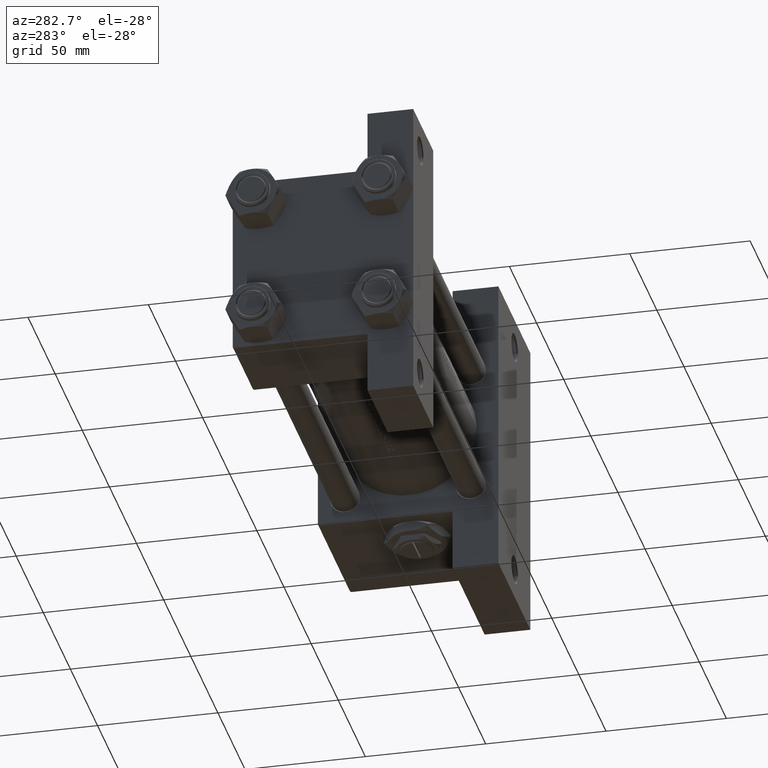
[diagram: clean part render]
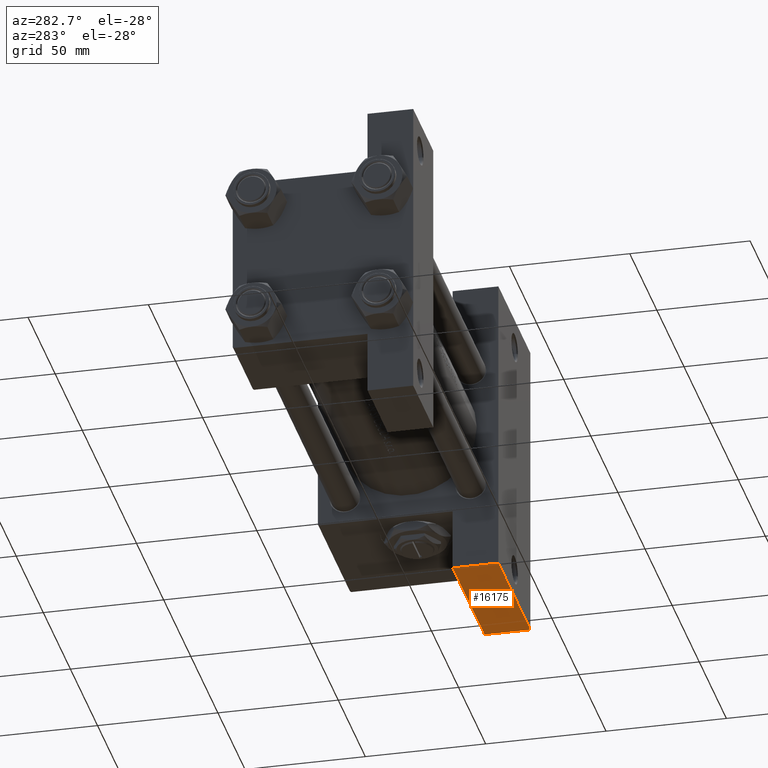
[diagram: same view with one face highlighted and labeled with its STEP entity id]
A machine part, auxiliary view. The second image highlights one B-rep face of the part: STEP entity #16175.
In plain terms, the highlighted planar face has unit normal (0, 0, -1).
Its self-contained STEP definition (entity closure, byte-faithful):
#1590 = DIRECTION ( 'NONE',  ( 0.000000000000000000, 0.000000000000000000, -1.000000000000000000 ) ) ;
#2116 = DIRECTION ( 'NONE',  ( 0.000000000000000000, 0.000000000000000000, -1.000000000000000000 ) ) ;
#3655 = VECTOR ( 'NONE', #2116, 1000.000000000000000 ) ;
#4936 = VERTEX_POINT ( 'NONE', #28573 ) ;
#10536 = DIRECTION ( 'NONE',  ( 1.000000000000000000, 0.000000000000000000, 0.000000000000000000 ) ) ;
#12425 = EDGE_CURVE ( 'NONE', #21495, #33807, #13865, .T. ) ;
#13865 = LINE ( 'NONE', #44223, #19453 ) ;
#15811 = ORIENTED_EDGE ( 'NONE', *, *, #16223, .T. ) ;
#16058 = LINE ( 'NONE', #39175, #48051 ) ;
#16175 = ADVANCED_FACE ( 'NONE', ( #21273 ), #20781, .T. ) ;
#16223 = EDGE_CURVE ( 'NONE', #36318, #4936, #29467, .T. ) ;
#16265 = CARTESIAN_POINT ( 'NONE',  ( 157.0000000000000284, 63.49999999999998579, -18.50000000000000000 ) ) ;
#17989 = VECTOR ( 'NONE', #10536, 1000.000000000000000 ) ;
#19453 = VECTOR ( 'NONE', #25307, 1000.000000000000000 ) ;
#20781 = PLANE ( 'NONE',  #25124 ) ;
#21273 = FACE_OUTER_BOUND ( 'NONE', #24023, .T. ) ;
#21495 = VERTEX_POINT ( 'NONE', #48291 ) ;
#24023 = EDGE_LOOP ( 'NONE', ( #28719, #27443, #15811, #30272 ) ) ;
#24994 = DIRECTION ( 'NONE',  ( 0.000000000000000000, -0.000000000000000000, 1.000000000000000000 ) ) ;
#25124 = AXIS2_PLACEMENT_3D ( 'NONE', #47656, #36443, #24994 ) ;
#25307 = DIRECTION ( 'NONE',  ( 1.000000000000000000, 0.000000000000000000, 0.000000000000000000 ) ) ;
#27429 = EDGE_CURVE ( 'NONE', #4936, #33807, #16058, .T. ) ;
#27443 = ORIENTED_EDGE ( 'NONE', *, *, #31233, .F. ) ;
#28573 = CARTESIAN_POINT ( 'NONE',  ( 216.0000000000000568, 63.49999999999998579, -18.50000000000000000 ) ) ;
#28719 = ORIENTED_EDGE ( 'NONE', *, *, #12425, .F. ) ;
#28724 = CARTESIAN_POINT ( 'NONE',  ( 216.0000000000000568, 63.49999999999998579, -37.50000000000000000 ) ) ;
#29467 = LINE ( 'NONE', #33936, #17989 ) ;
#30272 = ORIENTED_EDGE ( 'NONE', *, *, #27429, .T. ) ;
#31233 = EDGE_CURVE ( 'NONE', #36318, #21495, #39459, .T. ) ;
#32259 = CARTESIAN_POINT ( 'NONE',  ( 157.0000000000000284, 63.49999999999998579, -18.50000000000000000 ) ) ;
#33807 = VERTEX_POINT ( 'NONE', #28724 ) ;
#33936 = CARTESIAN_POINT ( 'NONE',  ( 157.0000000000000284, 63.49999999999998579, -18.50000000000000000 ) ) ;
#36318 = VERTEX_POINT ( 'NONE', #16265 ) ;
#36443 = DIRECTION ( 'NONE',  ( -0.000000000000000000, 1.000000000000000000, 0.000000000000000000 ) ) ;
#39175 = CARTESIAN_POINT ( 'NONE',  ( 216.0000000000000568, 63.49999999999998579, -18.50000000000000000 ) ) ;
#39459 = LINE ( 'NONE', #32259, #3655 ) ;
#44223 = CARTESIAN_POINT ( 'NONE',  ( 157.0000000000000284, 63.49999999999998579, -37.50000000000000000 ) ) ;
#47656 = CARTESIAN_POINT ( 'NONE',  ( 157.0000000000000284, 63.49999999999998579, -18.50000000000000000 ) ) ;
#48051 = VECTOR ( 'NONE', #1590, 1000.000000000000000 ) ;
#48291 = CARTESIAN_POINT ( 'NONE',  ( 157.0000000000000284, 63.49999999999998579, -37.50000000000000000 ) ) ;